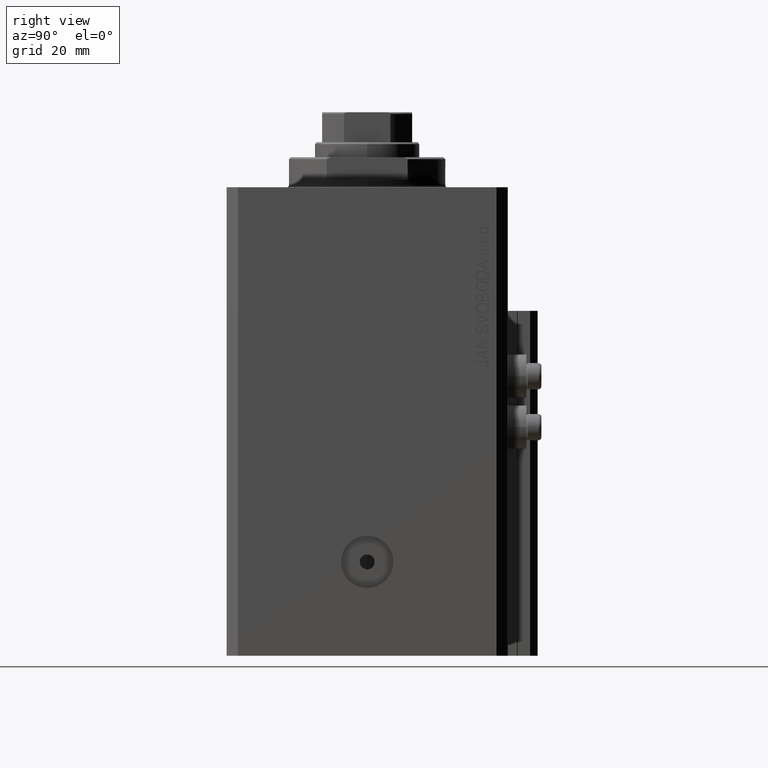
[diagram: clean part render]
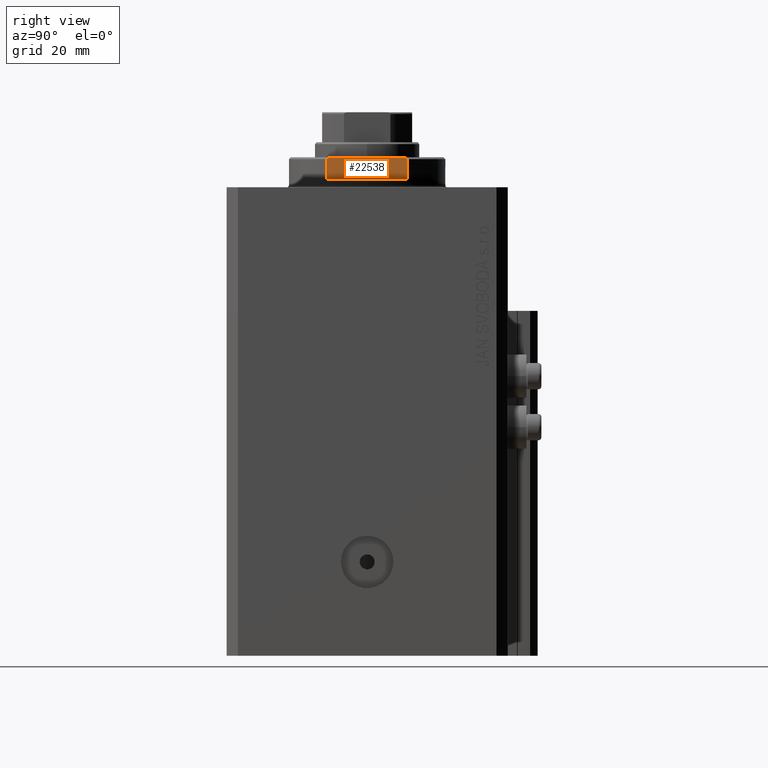
[diagram: same view with one face highlighted and labeled with its STEP entity id]
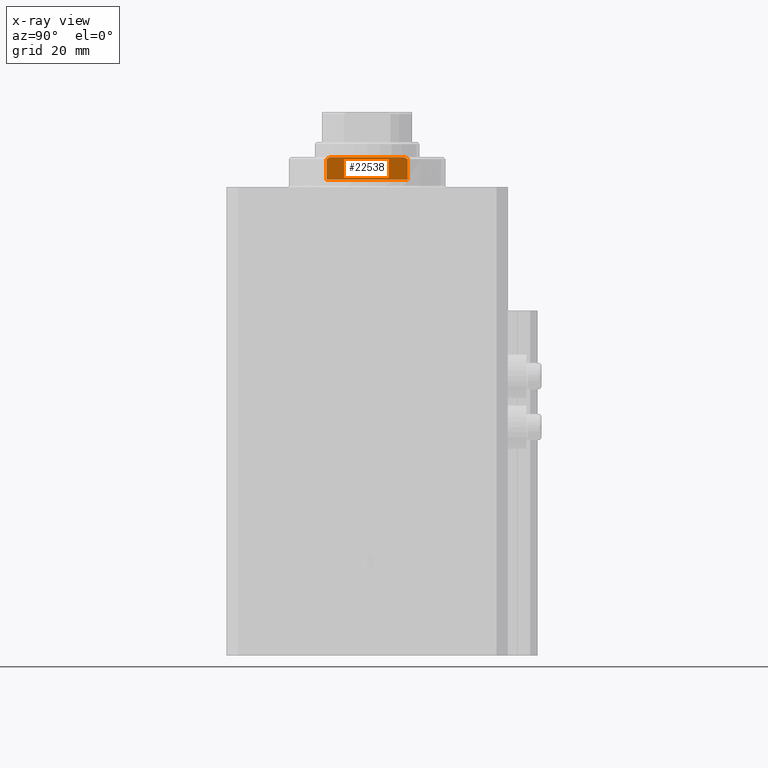
[diagram: x-ray of the same camera — body ghosted, the highlighted face saturated]
A machine part, right view. The second image highlights one B-rep face of the part: STEP entity #22538.
The next image is the same camera in x-ray: the body ghosted, the highlighted face saturated — about 0% of this face is hidden behind the body in this view.
In plain terms, the highlighted planar face has unit normal (-1, 0, 0).
Its self-contained STEP definition (entity closure, byte-faithful):
#89 = CARTESIAN_POINT ( 'NONE',  ( -18.00000000000000000, -10.81665382639197048, -7.500000000000017764 ) ) ;
#314 = CARTESIAN_POINT ( 'NONE',  ( -18.00000000000000000, -41.24318125460256113, -8.000000000000000000 ) ) ;
#745 = AXIS2_PLACEMENT_3D ( 'NONE', #46078, #5151, #45591 ) ;
#870 = ORIENTED_EDGE ( 'NONE', *, *, #4128, .F. ) ;
#1508 = ORIENTED_EDGE ( 'NONE', *, *, #10643, .T. ) ;
#3836 = CARTESIAN_POINT ( 'NONE',  ( -18.00000000000000000, -41.24318125460256113, -2.000000000000000000 ) ) ;
#4128 = EDGE_CURVE ( 'NONE', #40610, #40648, #43964, .T. ) ;
#5151 = DIRECTION ( 'NONE',  ( 1.000000000000000000, 0.000000000000000000, 0.000000000000000000 ) ) ;
#7019 = CARTESIAN_POINT ( 'NONE',  ( -18.00000000000000000, -10.14885752588745049, -7.838171603092474626 ) ) ;
#7297 = CARTESIAN_POINT ( 'NONE',  ( -18.00000000000000000, 9.810708435174332109, -8.000000000000000000 ) ) ;
#7330 = CARTESIAN_POINT ( 'NONE',  ( -18.00000000000000000, -10.81665382639197048, -7.500000000000017764 ) ) ;
#7532 = CARTESIAN_POINT ( 'NONE',  ( -18.00000000000000000, 10.14839560199154533, -7.838392666539328424 ) ) ;
#8935 = VECTOR ( 'NONE', #46762, 1000.000000000000000 ) ;
#9036 = CARTESIAN_POINT ( 'NONE',  ( -18.00000000000000000, 9.810708435174332109, -8.000000000000000000 ) ) ;
#9206 = PLANE ( 'NONE',  #745 ) ;
#10462 = LINE ( 'NONE', #35842, #28430 ) ;
#10643 = EDGE_CURVE ( 'NONE', #31395, #32636, #31167, .T. ) ;
#10702 = CARTESIAN_POINT ( 'NONE',  ( -18.00000000000000000, 10.81665382639197048, -2.000000000000000000 ) ) ;
#11169 = CARTESIAN_POINT ( 'NONE',  ( -18.00000000000000000, -10.81665382639197048, -8.000000000000000000 ) ) ;
#11357 = EDGE_CURVE ( 'NONE', #29998, #40610, #22501, .T. ) ;
#11755 = ORIENTED_EDGE ( 'NONE', *, *, #18364, .F. ) ;
#12357 = VECTOR ( 'NONE', #25617, 1000.000000000000000 ) ;
#13475 = VECTOR ( 'NONE', #29613, 1000.000000000000000 ) ;
#18364 = EDGE_CURVE ( 'NONE', #31395, #29998, #10462, .T. ) ;
#19450 = ORIENTED_EDGE ( 'NONE', *, *, #36979, .T. ) ;
#20445 = FACE_OUTER_BOUND ( 'NONE', #32770, .T. ) ;
#21182 = CARTESIAN_POINT ( 'NONE',  ( -18.00000000000000000, 10.81665382639197048, -7.500000000000016875 ) ) ;
#21367 = LINE ( 'NONE', #314, #8935 ) ;
#21697 = CARTESIAN_POINT ( 'NONE',  ( -18.00000000000000000, -10.81665382639197048, -2.000000000000000000 ) ) ;
#22501 = LINE ( 'NONE', #3836, #12357 ) ;
#22538 = ADVANCED_FACE ( 'NONE', ( #20445 ), #9206, .F. ) ;
#24415 = ORIENTED_EDGE ( 'NONE', *, *, #11357, .F. ) ;
#25617 = DIRECTION ( 'NONE',  ( -0.000000000000000000, -1.000000000000000000, -0.000000000000000000 ) ) ;
#25631 = CARTESIAN_POINT ( 'NONE',  ( -18.00000000000000000, 10.81665382639197048, -7.500000000000016875 ) ) ;
#28430 = VECTOR ( 'NONE', #42796, 1000.000000000000000 ) ;
#29613 = DIRECTION ( 'NONE',  ( 0.000000000000000000, 0.000000000000000000, -1.000000000000000000 ) ) ;
#29998 = VERTEX_POINT ( 'NONE', #10702 ) ;
#31167 = B_SPLINE_CURVE_WITH_KNOTS ( 'NONE', 3,
 ( #21182, #32913, #7532, #7297 ),
 .UNSPECIFIED., .F., .F.,
 ( 4, 4 ),
 ( 0.04062426037072789514, 0.04174950919407467709 ),
 .UNSPECIFIED. ) ;
#31395 = VERTEX_POINT ( 'NONE', #25631 ) ;
#32151 = B_SPLINE_CURVE_WITH_KNOTS ( 'NONE', 3,
 ( #43403, #7019, #43872, #89 ),
 .UNSPECIFIED., .F., .F.,
 ( 4, 4 ),
 ( 0.06217926064546155235, 0.06331210020888052015 ),
 .UNSPECIFIED. ) ;
#32636 = VERTEX_POINT ( 'NONE', #9036 ) ;
#32770 = EDGE_LOOP ( 'NONE', ( #1508, #19450, #41287, #870, #24415, #11755 ) ) ;
#32913 = CARTESIAN_POINT ( 'NONE',  ( -18.00000000000000000, 10.48362233087180506, -7.671537447634650064 ) ) ;
#35465 = CARTESIAN_POINT ( 'NONE',  ( -18.00000000000000000, -9.810708435174332109, -8.000000000000000000 ) ) ;
#35842 = CARTESIAN_POINT ( 'NONE',  ( -18.00000000000000000, 10.81665382639197048, -8.000000000000000000 ) ) ;
#36979 = EDGE_CURVE ( 'NONE', #32636, #38147, #21367, .T. ) ;
#37992 = EDGE_CURVE ( 'NONE', #38147, #40648, #32151, .T. ) ;
#38147 = VERTEX_POINT ( 'NONE', #35465 ) ;
#40610 = VERTEX_POINT ( 'NONE', #21697 ) ;
#40648 = VERTEX_POINT ( 'NONE', #7330 ) ;
#41287 = ORIENTED_EDGE ( 'NONE', *, *, #37992, .T. ) ;
#42796 = DIRECTION ( 'NONE',  ( -0.000000000000000000, -0.000000000000000000, 1.000000000000000000 ) ) ;
#43403 = CARTESIAN_POINT ( 'NONE',  ( -18.00000000000000000, -9.810708435174332109, -8.000000000000000000 ) ) ;
#43872 = CARTESIAN_POINT ( 'NONE',  ( -18.00000000000000000, -10.48405973417029635, -7.671312150488895476 ) ) ;
#43964 = LINE ( 'NONE', #11169, #13475 ) ;
#45591 = DIRECTION ( 'NONE',  ( 0.000000000000000000, 0.000000000000000000, -1.000000000000000000 ) ) ;
#46078 = CARTESIAN_POINT ( 'NONE',  ( -18.00000000000000000, -41.24318125460256113, -2.000000000000000000 ) ) ;
#46762 = DIRECTION ( 'NONE',  ( -0.000000000000000000, -1.000000000000000000, -0.000000000000000000 ) ) ;